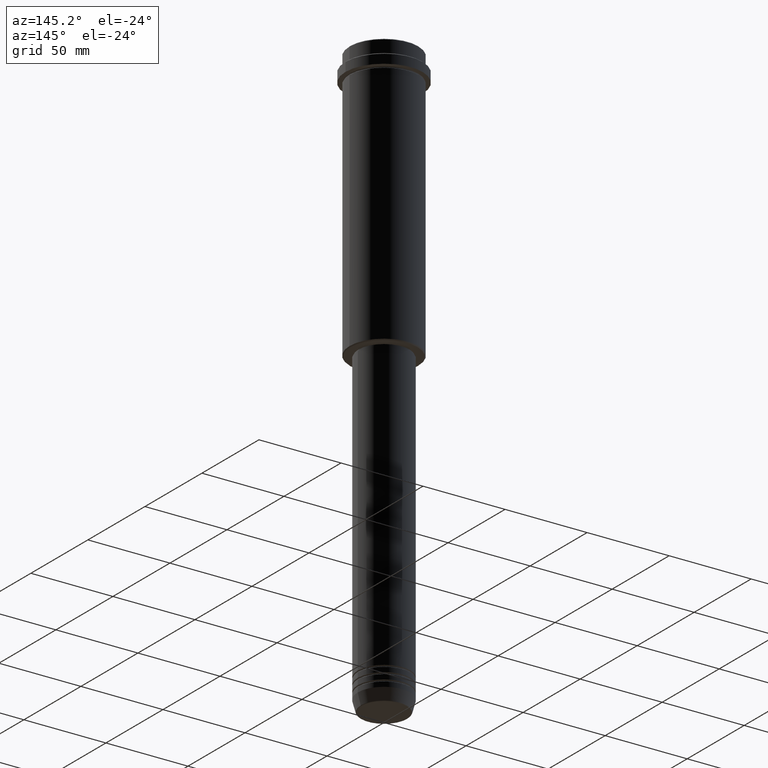
[diagram: clean part render]
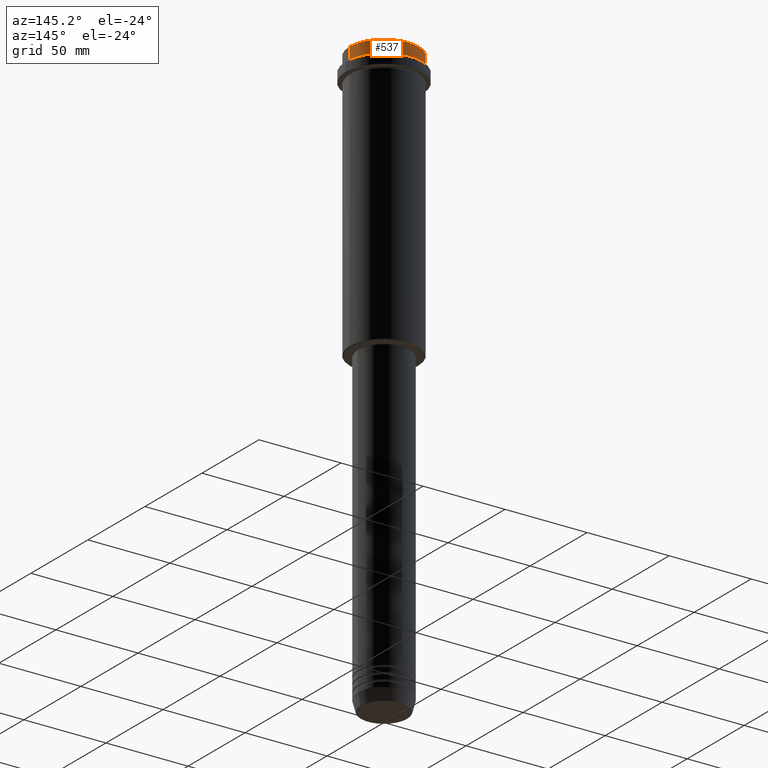
[diagram: same view with one face highlighted and labeled with its STEP entity id]
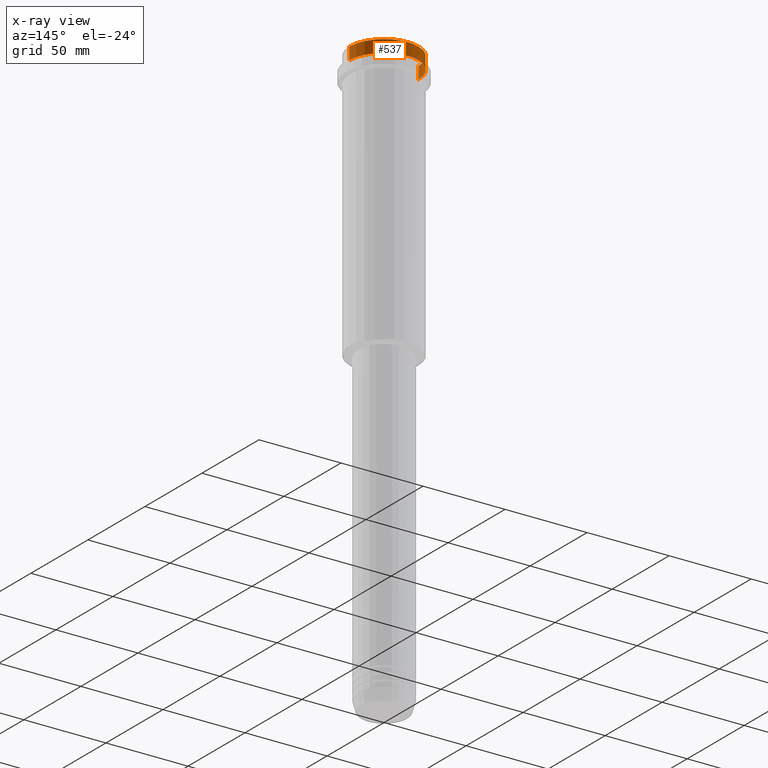
[diagram: x-ray of the same camera — body ghosted, the highlighted face saturated]
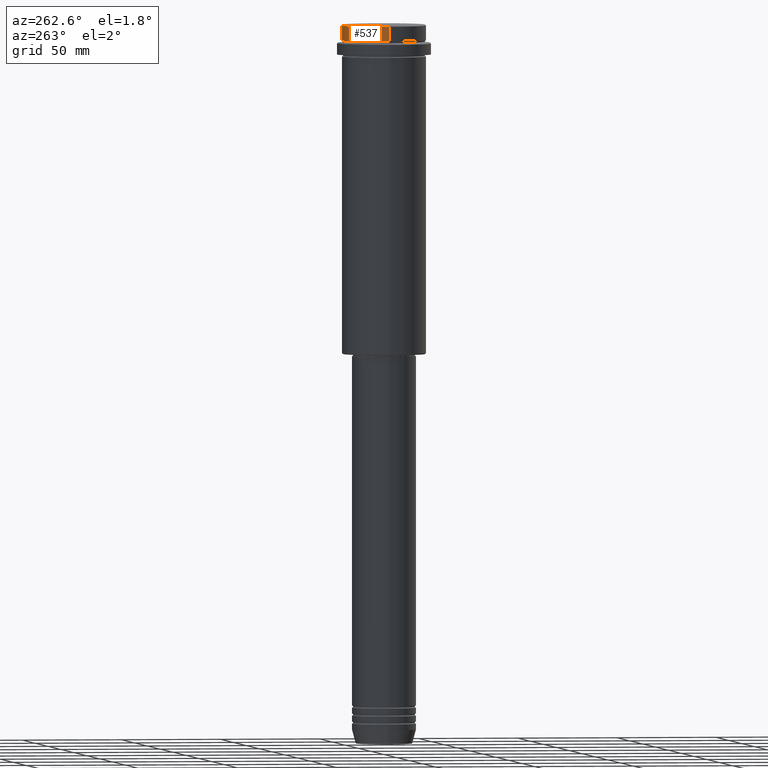
[diagram: same view with one face highlighted and labeled with its STEP entity id]
A machine part, auxiliary view. The second image highlights one B-rep face of the part: STEP entity #537.
The next image is the same camera in x-ray: the body ghosted, the highlighted face saturated — about 0% of this face is hidden behind the body in this view.
A second angle (auxiliary view) of the same face is appended — the face is thin or edge-on in the first view.
In plain terms, the highlighted cylindrical surface (partial cylindrical patch) has radius 21 mm, axis along (-0, -0, 1).
Its self-contained STEP definition (entity closure, byte-faithful):
#49 = ORIENTED_EDGE ( 'NONE', *, *, #1118, .T. ) ;
#77 = CARTESIAN_POINT ( 'NONE',  ( 0.000000000000000000, 0.000000000000000000, -0.4999999999999241163 ) ) ;
#133 = ORIENTED_EDGE ( 'NONE', *, *, #272, .F. ) ;
#203 = CARTESIAN_POINT ( 'NONE',  ( 20.99999999999999645, 0.000000000000000000, 0.000000000000000000 ) ) ;
#271 = DIRECTION ( 'NONE',  ( 0.000000000000000000, 0.000000000000000000, -1.000000000000000000 ) ) ;
#272 = EDGE_CURVE ( 'NONE', #724, #746, #1411, .T. ) ;
#301 = DIRECTION ( 'NONE',  ( -0.000000000000000000, -0.000000000000000000, 1.000000000000000000 ) ) ;
#354 = CARTESIAN_POINT ( 'NONE',  ( -20.99999999999999645, 2.571758278209441267E-15, -7.999999999999998224 ) ) ;
#376 = CARTESIAN_POINT ( 'NONE',  ( 0.000000000000000000, 0.000000000000000000, -7.999999999999998224 ) ) ;
#509 = VERTEX_POINT ( 'NONE', #981 ) ;
#537 = ADVANCED_FACE ( 'NONE', ( #972 ), #1297, .T. ) ;
#577 = CIRCLE ( 'NONE', #871, 20.99999999999999645 ) ;
#646 = ORIENTED_EDGE ( 'NONE', *, *, #818, .T. ) ;
#664 = EDGE_CURVE ( 'NONE', #509, #746, #1221, .T. ) ;
#698 = CARTESIAN_POINT ( 'NONE',  ( 20.99999999999999645, 0.000000000000000000, -7.999999999999998224 ) ) ;
#724 = VERTEX_POINT ( 'NONE', #698 ) ;
#746 = VERTEX_POINT ( 'NONE', #974 ) ;
#779 = AXIS2_PLACEMENT_3D ( 'NONE', #853, #301, #977 ) ;
#813 = DIRECTION ( 'NONE',  ( -0.000000000000000000, -0.000000000000000000, 1.000000000000000000 ) ) ;
#818 = EDGE_CURVE ( 'NONE', #724, #1132, #577, .T. ) ;
#838 = CARTESIAN_POINT ( 'NONE',  ( -20.99999999999999645, 2.571758278209441267E-15, 0.000000000000000000 ) ) ;
#853 = CARTESIAN_POINT ( 'NONE',  ( 0.000000000000000000, 0.000000000000000000, 0.000000000000000000 ) ) ;
#871 = AXIS2_PLACEMENT_3D ( 'NONE', #376, #813, #1263 ) ;
#972 = FACE_OUTER_BOUND ( 'NONE', #1344, .T. ) ;
#974 = CARTESIAN_POINT ( 'NONE',  ( 20.99999999999999645, 0.000000000000000000, -0.4999999999999241163 ) ) ;
#977 = DIRECTION ( 'NONE',  ( 1.000000000000000000, 0.000000000000000000, 0.000000000000000000 ) ) ;
#981 = CARTESIAN_POINT ( 'NONE',  ( -20.99999999999999645, 2.571758278209441267E-15, -0.4999999999999241163 ) ) ;
#1027 = DIRECTION ( 'NONE',  ( 1.000000000000000000, 0.000000000000000000, 0.000000000000000000 ) ) ;
#1118 = EDGE_CURVE ( 'NONE', #1132, #509, #1390, .T. ) ;
#1123 = ORIENTED_EDGE ( 'NONE', *, *, #664, .T. ) ;
#1132 = VERTEX_POINT ( 'NONE', #354 ) ;
#1200 = VECTOR ( 'NONE', #1401, 1000.000000000000000 ) ;
#1204 = VECTOR ( 'NONE', #1261, 1000.000000000000000 ) ;
#1221 = CIRCLE ( 'NONE', #1291, 20.99999999999999645 ) ;
#1261 = DIRECTION ( 'NONE',  ( -0.000000000000000000, -0.000000000000000000, 1.000000000000000000 ) ) ;
#1263 = DIRECTION ( 'NONE',  ( 1.000000000000000000, 0.000000000000000000, 0.000000000000000000 ) ) ;
#1291 = AXIS2_PLACEMENT_3D ( 'NONE', #77, #271, #1027 ) ;
#1297 = CYLINDRICAL_SURFACE ( 'NONE', #779, 20.99999999999999645 ) ;
#1344 = EDGE_LOOP ( 'NONE', ( #646, #49, #1123, #133 ) ) ;
#1390 = LINE ( 'NONE', #838, #1204 ) ;
#1401 = DIRECTION ( 'NONE',  ( -0.000000000000000000, -0.000000000000000000, 1.000000000000000000 ) ) ;
#1411 = LINE ( 'NONE', #203, #1200 ) ;